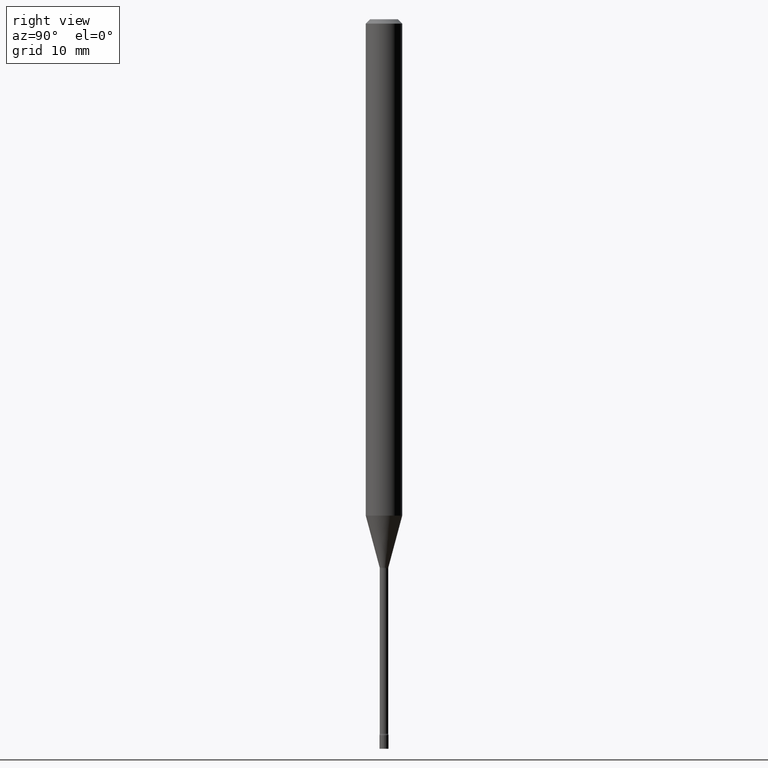
[diagram: clean part render]
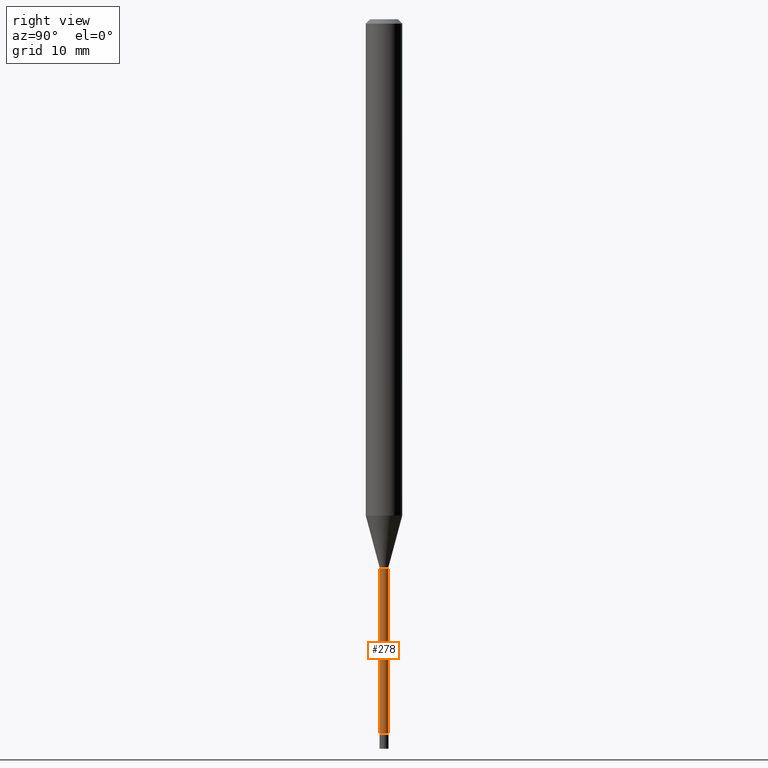
[diagram: same view with one face highlighted and labeled with its STEP entity id]
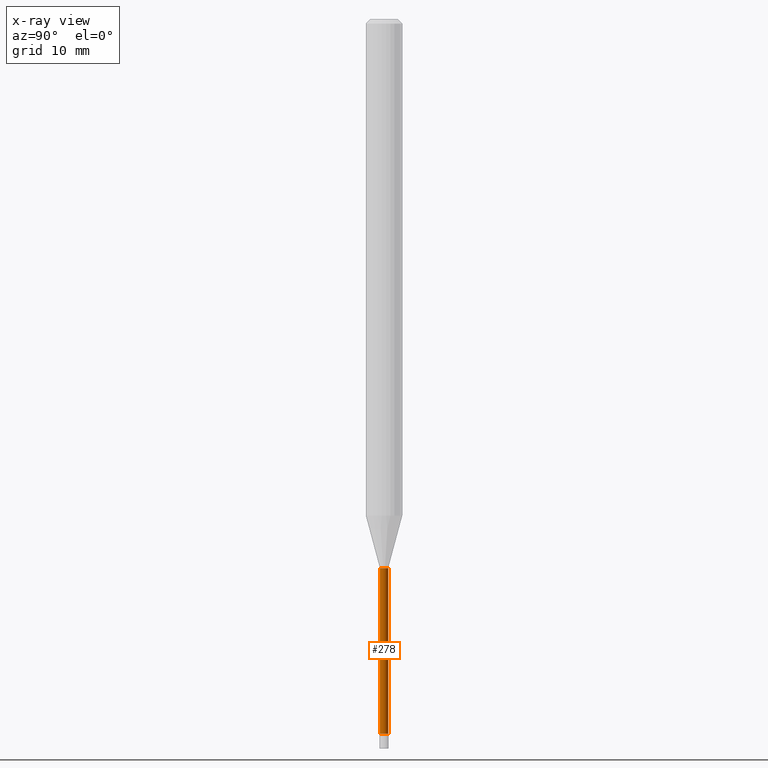
[diagram: x-ray of the same camera — body ghosted, the highlighted face saturated]
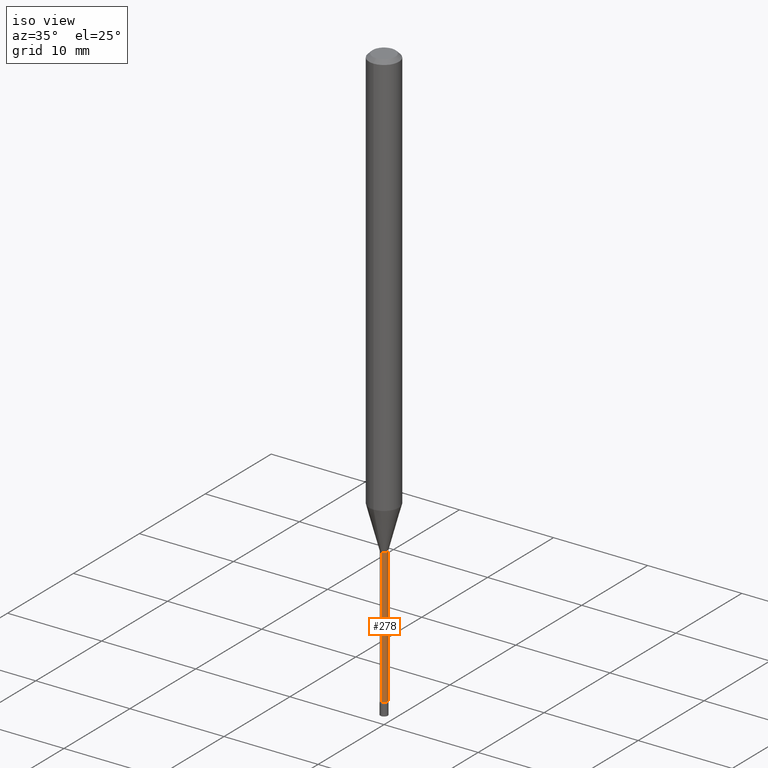
[diagram: same view with one face highlighted and labeled with its STEP entity id]
A machine part, right view. The second image highlights one B-rep face of the part: STEP entity #278.
The next image is the same camera in x-ray: the body ghosted, the highlighted face saturated — about 0% of this face is hidden behind the body in this view.
A second angle (iso view) of the same face is appended — the face is thin or edge-on in the first view.
In plain terms, the highlighted cylindrical surface (edge-blend (fillet) strip) has radius 0.3696 mm, axis along (-0, 0, 1).
Its self-contained STEP definition (entity closure, byte-faithful):
#2 = ORIENTED_EDGE ( 'NONE', *, *, #390, .T. ) ;
#5 = ORIENTED_EDGE ( 'NONE', *, *, #441, .F. ) ;
#35 = VERTEX_POINT ( 'NONE', #475 ) ;
#40 = CIRCLE ( 'NONE', #281, 0.01455000000000002472 ) ;
#56 = EDGE_CURVE ( 'NONE', #126, #133, #280, .T. ) ;
#78 = VERTEX_POINT ( 'NONE', #211 ) ;
#111 = DIRECTION ( 'NONE',  ( -2.445476843711301274E-29, 3.491469828648210264E-15, 1.000000000000000000 ) ) ;
#126 = VERTEX_POINT ( 'NONE', #381 ) ;
#133 = VERTEX_POINT ( 'NONE', #269 ) ;
#145 = VECTOR ( 'NONE', #173, 39.37007874015748143 ) ;
#150 = DIRECTION ( 'NONE',  ( -6.982962677686266711E-15, -1.000000000000000000, 3.491469828648210264E-15 ) ) ;
#170 = EDGE_LOOP ( 'NONE', ( #2, #456, #348, #5 ) ) ;
#173 = DIRECTION ( 'NONE',  ( -2.445476843711301274E-29, 3.491469828648210264E-15, 1.000000000000000000 ) ) ;
#194 = FACE_OUTER_BOUND ( 'NONE', #170, .T. ) ;
#195 = AXIS2_PLACEMENT_3D ( 'NONE', #332, #111, #249 ) ;
#198 = EDGE_CURVE ( 'NONE', #78, #133, #202, .T. ) ;
#202 = LINE ( 'NONE', #339, #326 ) ;
#211 = CARTESIAN_POINT ( 'NONE',  ( 1.067590460480151308E-16, 0.01454999999999147774, -2.447746667724196357 ) ) ;
#220 = CARTESIAN_POINT ( 'NONE',  ( -1.016021069603352548E-16, -0.01455000000000001084, 5.080088600683149511E-17 ) ) ;
#249 = DIRECTION ( 'NONE',  ( -6.982962677686266711E-15, -1.000000000000000000, 0.000000000000000000 ) ) ;
#269 = CARTESIAN_POINT ( 'NONE',  ( 1.033839680531545582E-16, 0.01454999999999342930, -1.881974787463811083 ) ) ;
#278 = ADVANCED_FACE ( 'NONE', ( #194 ), #469, .T. ) ;
#280 = CIRCLE ( 'NONE', #195, 0.01455000000000000043 ) ;
#281 = AXIS2_PLACEMENT_3D ( 'NONE', #287, #502, #290 ) ;
#287 = CARTESIAN_POINT ( 'NONE',  ( 5.985907795191022558E-29, -8.546233638533228487E-15, -2.447746667724196357 ) ) ;
#290 = DIRECTION ( 'NONE',  ( -6.982962677686265133E-15, -1.000000000000000000, 0.000000000000000000 ) ) ;
#295 = DIRECTION ( 'NONE',  ( -2.445476843711301274E-29, 3.491469828648210264E-15, 1.000000000000000000 ) ) ;
#298 = DIRECTION ( 'NONE',  ( -2.445476843711301274E-29, 3.491469828648210264E-15, 1.000000000000000000 ) ) ;
#310 = LINE ( 'NONE', #220, #145 ) ;
#316 = AXIS2_PLACEMENT_3D ( 'NONE', #471, #298, #150 ) ;
#326 = VECTOR ( 'NONE', #295, 39.37007874015748143 ) ;
#332 = CARTESIAN_POINT ( 'NONE',  ( 4.602325763191248132E-29, -6.570858188706524470E-15, -1.881974787463811083 ) ) ;
#339 = CARTESIAN_POINT ( 'NONE',  ( 1.033839680530946418E-16, 0.01455000000000001084, -5.080088600683149511E-17 ) ) ;
#348 = ORIENTED_EDGE ( 'NONE', *, *, #56, .F. ) ;
#381 = CARTESIAN_POINT ( 'NONE',  ( -1.016021069602891557E-16, -0.01455000000000657157, -1.881974787463811083 ) ) ;
#390 = EDGE_CURVE ( 'NONE', #35, #78, #40, .T. ) ;
#441 = EDGE_CURVE ( 'NONE', #35, #126, #310, .T. ) ;
#456 = ORIENTED_EDGE ( 'NONE', *, *, #198, .T. ) ;
#469 = CYLINDRICAL_SURFACE ( 'NONE', #316, 0.01455000000000001084 ) ;
#471 = CARTESIAN_POINT ( 'NONE',  ( 0.000000000000000000, 0.000000000000000000, 0.000000000000000000 ) ) ;
#475 = CARTESIAN_POINT ( 'NONE',  ( -1.016021069602754739E-16, -0.01455000000000856997, -2.447746667724196357 ) ) ;
#502 = DIRECTION ( 'NONE',  ( -2.445476843711301274E-29, 3.491469828648210264E-15, 1.000000000000000000 ) ) ;